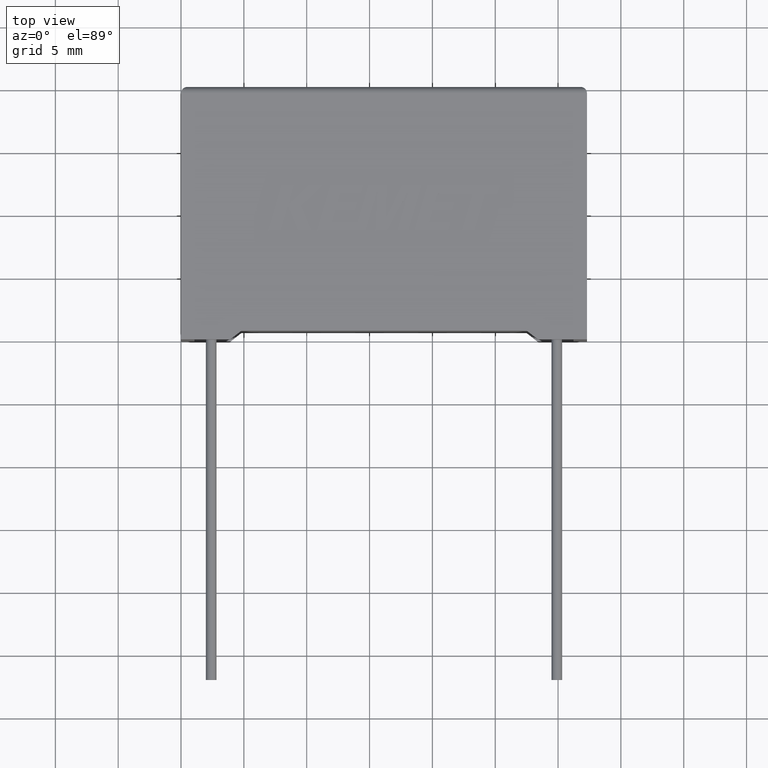
[diagram: clean part render]
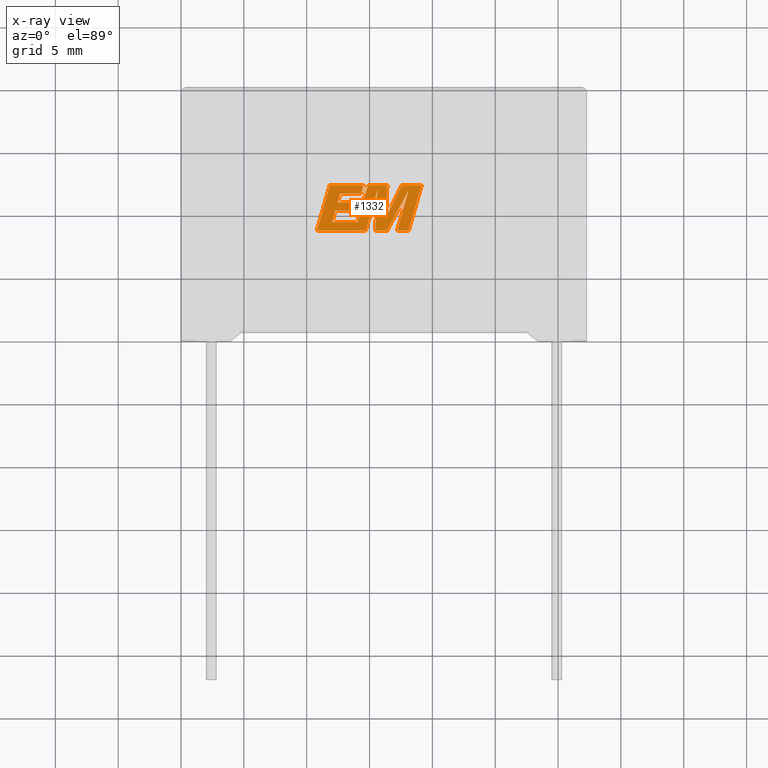
[diagram: x-ray — body ghosted, one internal face saturated and labeled with its STEP entity id]
A machine part, top view, then the same camera in x-ray: the body is ghosted and one INTERNAL B-rep face — a face not visible from any outside direction — is saturated and labeled: STEP entity #1332.
In plain terms, the highlighted planar face has unit normal (0, 0, -1).
Its self-contained STEP definition (entity closure, byte-faithful):
#7 = VECTOR ( 'NONE', #2925, 1000.000000000000000 ) ;
#12 = ORIENTED_EDGE ( 'NONE', *, *, #317, .F. ) ;
#18 = VERTEX_POINT ( 'NONE', #734 ) ;
#19 = EDGE_CURVE ( 'NONE', #2251, #667, #1633, .T. ) ;
#34 = VERTEX_POINT ( 'NONE', #502 ) ;
#46 = LINE ( 'NONE', #859, #2433 ) ;
#60 = VECTOR ( 'NONE', #1250, 1000.000000000000100 ) ;
#61 = LINE ( 'NONE', #334, #2483 ) ;
#65 = FACE_OUTER_BOUND ( 'NONE', #2859, .T. ) ;
#106 = EDGE_CURVE ( 'NONE', #2401, #2596, #2646, .T. ) ;
#110 = VERTEX_POINT ( 'NONE', #1864 ) ;
#112 = VECTOR ( 'NONE', #1241, 1000.000000000000100 ) ;
#128 = CARTESIAN_POINT ( 'NONE',  ( 14.31841734785612800, 11.57825739074300800, 11.19999999999999900 ) ) ;
#147 = LINE ( 'NONE', #2217, #7 ) ;
#175 = VECTOR ( 'NONE', #2502, 999.9999999999998900 ) ;
#206 = CARTESIAN_POINT ( 'NONE',  ( 18.11500212160962400, 11.88543569358202500, 11.19999999999999900 ) ) ;
#207 = VERTEX_POINT ( 'NONE', #1850 ) ;
#220 = EDGE_CURVE ( 'NONE', #2630, #2401, #3057, .T. ) ;
#237 = VECTOR ( 'NONE', #877, 1000.000000000000000 ) ;
#240 = ORIENTED_EDGE ( 'NONE', *, *, #1029, .F. ) ;
#272 = VERTEX_POINT ( 'NONE', #1427 ) ;
#317 = EDGE_CURVE ( 'NONE', #2596, #498, #2481, .T. ) ;
#334 = CARTESIAN_POINT ( 'NONE',  ( 12.02725266658700900, 9.337332048739172700, 11.19999999999999900 ) ) ;
#336 = VECTOR ( 'NONE', #978, 1000.000000000000000 ) ;
#377 = EDGE_CURVE ( 'NONE', #272, #550, #2415, .T. ) ;
#392 = DIRECTION ( 'NONE',  ( -1.000000000000000000, 0.0000000000000000000, 0.0000000000000000000 ) ) ;
#393 = CARTESIAN_POINT ( 'NONE',  ( 12.67007859787552300, 11.57825739074300800, 11.19999999999999900 ) ) ;
#399 = CARTESIAN_POINT ( 'NONE',  ( 15.44199866117102900, 8.649029999999887900, 11.19999999999999900 ) ) ;
#414 = DIRECTION ( 'NONE',  ( 1.000000000000000000, 0.0000000000000000000, 0.0000000000000000000 ) ) ;
#416 = DIRECTION ( 'NONE',  ( 0.2732148821746286400, 0.9619530280415482500, 0.0000000000000000000 ) ) ;
#417 = VERTEX_POINT ( 'NONE', #2978 ) ;
#467 = VECTOR ( 'NONE', #1960, 1000.000000000000000 ) ;
#477 = VECTOR ( 'NONE', #917, 1000.000000000000100 ) ;
#498 = VERTEX_POINT ( 'NONE', #2751 ) ;
#502 = CARTESIAN_POINT ( 'NONE',  ( 17.55836071105327500, 12.26690045535386600, 11.19999999999999900 ) ) ;
#549 = DIRECTION ( 'NONE',  ( -0.05596501978069370200, -0.9984327301130239100, 0.0000000000000000000 ) ) ;
#550 = VERTEX_POINT ( 'NONE', #1969 ) ;
#570 = EDGE_CURVE ( 'NONE', #3039, #207, #816, .T. ) ;
#604 = VECTOR ( 'NONE', #2088, 1000.000000000000000 ) ;
#632 = CARTESIAN_POINT ( 'NONE',  ( 19.14513408663368900, 12.26690045535386600, 11.19999999999999900 ) ) ;
#667 = VERTEX_POINT ( 'NONE', #727 ) ;
#685 = CARTESIAN_POINT ( 'NONE',  ( 12.28345459587228900, 10.23651391646099300, 11.19999999999999900 ) ) ;
#709 = ORIENTED_EDGE ( 'NONE', *, *, #19, .F. ) ;
#727 = CARTESIAN_POINT ( 'NONE',  ( 12.67007859787552300, 11.57825739074300800, 11.19999999999999900 ) ) ;
#734 = CARTESIAN_POINT ( 'NONE',  ( 15.44199866117102900, 8.649029999999887900, 11.19999999999999900 ) ) ;
#750 = CARTESIAN_POINT ( 'NONE',  ( 14.51400645488465300, 12.26690045535386600, 11.19999999999999900 ) ) ;
#783 = EDGE_CURVE ( 'NONE', #110, #272, #1541, .T. ) ;
#803 = ORIENTED_EDGE ( 'NONE', *, *, #1861, .F. ) ;
#816 = LINE ( 'NONE', #2271, #175 ) ;
#836 = VERTEX_POINT ( 'NONE', #750 ) ;
#859 = CARTESIAN_POINT ( 'NONE',  ( 16.40649056986196900, 8.649029999999887900, 11.19999999999999900 ) ) ;
#869 = LINE ( 'NONE', #399, #2685 ) ;
#877 = DIRECTION ( 'NONE',  ( -1.000000000000000000, 0.0000000000000000000, 0.0000000000000000000 ) ) ;
#888 = VERTEX_POINT ( 'NONE', #1977 ) ;
#889 = CARTESIAN_POINT ( 'NONE',  ( 17.18561284736853500, 8.649029999999887900, 11.19999999999999900 ) ) ;
#893 = CARTESIAN_POINT ( 'NONE',  ( 17.55836071105327500, 12.26690045535386600, 11.19999999999999900 ) ) ;
#917 = DIRECTION ( 'NONE',  ( 0.2793947940878294700, 0.9601763114327593900, 0.0000000000000000000 ) ) ;
#942 = EDGE_CURVE ( 'NONE', #417, #836, #2631, .T. ) ;
#946 = ORIENTED_EDGE ( 'NONE', *, *, #1156, .F. ) ;
#978 = DIRECTION ( 'NONE',  ( -1.000000000000000000, 0.0000000000000000000, 0.0000000000000000000 ) ) ;
#981 = ORIENTED_EDGE ( 'NONE', *, *, #1884, .F. ) ;
#988 = CARTESIAN_POINT ( 'NONE',  ( 18.11500212160962400, 11.88543569358202500, 11.19999999999999900 ) ) ;
#998 = LINE ( 'NONE', #685, #2267 ) ;
#1006 = DIRECTION ( 'NONE',  ( 0.2740217765954066600, 0.9617234872620595800, 0.0000000000000000000 ) ) ;
#1026 = LINE ( 'NONE', #2114, #2535 ) ;
#1029 = EDGE_CURVE ( 'NONE', #207, #1196, #2028, .T. ) ;
#1047 = ORIENTED_EDGE ( 'NONE', *, *, #2888, .F. ) ;
#1082 = DIRECTION ( 'NONE',  ( 0.2746459304916892800, 0.9615454294334481200, 0.0000000000000000000 ) ) ;
#1136 = ORIENTED_EDGE ( 'NONE', *, *, #942, .F. ) ;
#1156 = EDGE_CURVE ( 'NONE', #34, #2395, #2292, .T. ) ;
#1181 = VERTEX_POINT ( 'NONE', #2538 ) ;
#1196 = VERTEX_POINT ( 'NONE', #2972 ) ;
#1197 = EDGE_CURVE ( 'NONE', #667, #417, #2372, .T. ) ;
#1199 = LINE ( 'NONE', #2276, #2687 ) ;
#1207 = ORIENTED_EDGE ( 'NONE', *, *, #2340, .F. ) ;
#1235 = CARTESIAN_POINT ( 'NONE',  ( 17.18561284736853500, 8.649029999999887900, 11.19999999999999900 ) ) ;
#1241 = DIRECTION ( 'NONE',  ( -0.2760118818968580500, -0.9611542233438683500, 0.0000000000000000000 ) ) ;
#1250 = DIRECTION ( 'NONE',  ( -0.2762517575166416600, -0.9610853065513833600, 0.0000000000000000000 ) ) ;
#1291 = CARTESIAN_POINT ( 'NONE',  ( 15.62253906749800900, 11.86992497137884000, 11.19999999999999900 ) ) ;
#1294 = CARTESIAN_POINT ( 'NONE',  ( 18.10496965447793000, 8.649029999999887900, 11.19999999999999900 ) ) ;
#1311 = LINE ( 'NONE', #632, #237 ) ;
#1332 = ADVANCED_FACE ( 'NONE', ( #65 ), #2812, .T. ) ;
#1370 = CARTESIAN_POINT ( 'NONE',  ( 13.83606688863586200, 10.23651391646099300, 11.19999999999999900 ) ) ;
#1371 = ORIENTED_EDGE ( 'NONE', *, *, #220, .F. ) ;
#1379 = EDGE_CURVE ( 'NONE', #2369, #1794, #998, .T. ) ;
#1392 = ORIENTED_EDGE ( 'NONE', *, *, #2054, .F. ) ;
#1426 = ORIENTED_EDGE ( 'NONE', *, *, #106, .F. ) ;
#1427 = CARTESIAN_POINT ( 'NONE',  ( 14.87486725729231400, 12.26690045535386600, 11.19999999999999900 ) ) ;
#1429 = VERTEX_POINT ( 'NONE', #1430 ) ;
#1430 = CARTESIAN_POINT ( 'NONE',  ( 12.02725266658700900, 9.337332048739172700, 11.19999999999999900 ) ) ;
#1487 = VECTOR ( 'NONE', #1082, 1000.000000000000100 ) ;
#1529 = DIRECTION ( 'NONE',  ( 1.000000000000000000, 0.0000000000000000000, 0.0000000000000000000 ) ) ;
#1541 = LINE ( 'NONE', #2901, #336 ) ;
#1578 = CARTESIAN_POINT ( 'NONE',  ( 12.28345459587228900, 10.23651391646099300, 11.19999999999999900 ) ) ;
#1599 = LINE ( 'NONE', #3006, #2197 ) ;
#1611 = DIRECTION ( 'NONE',  ( 0.0000000000000000000, 0.0000000000000000000, -1.000000000000000000 ) ) ;
#1616 = CARTESIAN_POINT ( 'NONE',  ( 11.84124500571444100, 12.26690045535386600, 11.19999999999999900 ) ) ;
#1630 = CARTESIAN_POINT ( 'NONE',  ( 16.27645733615719300, 9.682247318116898400, 11.19999999999999900 ) ) ;
#1633 = LINE ( 'NONE', #2347, #477 ) ;
#1664 = DIRECTION ( 'NONE',  ( -1.000000000000000000, 0.0000000000000000000, 0.0000000000000000000 ) ) ;
#1685 = VECTOR ( 'NONE', #2766, 1000.000000000000000 ) ;
#1737 = ORIENTED_EDGE ( 'NONE', *, *, #2333, .F. ) ;
#1794 = VERTEX_POINT ( 'NONE', #1370 ) ;
#1795 = LINE ( 'NONE', #2720, #1487 ) ;
#1804 = VECTOR ( 'NONE', #1835, 1000.000000000000000 ) ;
#1806 = ORIENTED_EDGE ( 'NONE', *, *, #2817, .F. ) ;
#1828 = ORIENTED_EDGE ( 'NONE', *, *, #2689, .F. ) ;
#1835 = DIRECTION ( 'NONE',  ( -0.4443210308329518200, -0.8958676361826802800, 0.0000000000000000000 ) ) ;
#1850 = CARTESIAN_POINT ( 'NONE',  ( 10.80016752814025500, 8.649029999999887900, 11.19999999999999900 ) ) ;
#1856 = ORIENTED_EDGE ( 'NONE', *, *, #1379, .F. ) ;
#1861 = EDGE_CURVE ( 'NONE', #550, #1429, #1026, .T. ) ;
#1864 = CARTESIAN_POINT ( 'NONE',  ( 16.41559028856627500, 12.26690045535386600, 11.19999999999999900 ) ) ;
#1881 = DIRECTION ( 'NONE',  ( 1.000000000000000000, 0.0000000000000000000, 0.0000000000000000000 ) ) ;
#1884 = EDGE_CURVE ( 'NONE', #2395, #110, #3015, .T. ) ;
#1904 = ORIENTED_EDGE ( 'NONE', *, *, #2000, .F. ) ;
#1960 = DIRECTION ( 'NONE',  ( 0.2763139702539113600, 0.9610674221107073900, 0.0000000000000000000 ) ) ;
#1969 = CARTESIAN_POINT ( 'NONE',  ( 14.03280004892295100, 9.337332048739172700, 11.19999999999999900 ) ) ;
#1973 = CARTESIAN_POINT ( 'NONE',  ( 18.10496965447793000, 8.649029999999887900, 11.19999999999999900 ) ) ;
#1977 = CARTESIAN_POINT ( 'NONE',  ( 16.40649056986196900, 8.649029999999887900, 11.19999999999999900 ) ) ;
#1995 = CARTESIAN_POINT ( 'NONE',  ( 15.62253906749800900, 11.86992497137884000, 11.19999999999999900 ) ) ;
#2000 = EDGE_CURVE ( 'NONE', #2270, #18, #2187, .T. ) ;
#2028 = LINE ( 'NONE', #2937, #2559 ) ;
#2040 = DIRECTION ( 'NONE',  ( 0.4668459304955081000, 0.8843386665637679200, 0.0000000000000000000 ) ) ;
#2054 = EDGE_CURVE ( 'NONE', #1429, #2369, #61, .T. ) ;
#2088 = DIRECTION ( 'NONE',  ( 1.000000000000000000, 0.0000000000000000000, 0.0000000000000000000 ) ) ;
#2091 = ORIENTED_EDGE ( 'NONE', *, *, #2556, .F. ) ;
#2114 = CARTESIAN_POINT ( 'NONE',  ( 14.03280004892295100, 9.337332048739172700, 11.19999999999999900 ) ) ;
#2122 = CARTESIAN_POINT ( 'NONE',  ( 16.27645733615719300, 9.682247318116898400, 11.19999999999999900 ) ) ;
#2133 = ORIENTED_EDGE ( 'NONE', *, *, #570, .F. ) ;
#2187 = LINE ( 'NONE', #1291, #2533 ) ;
#2197 = VECTOR ( 'NONE', #2373, 1000.000000000000200 ) ;
#2217 = CARTESIAN_POINT ( 'NONE',  ( 14.02710178361076900, 10.90533405807593100, 11.19999999999999900 ) ) ;
#2251 = VERTEX_POINT ( 'NONE', #2266 ) ;
#2266 = CARTESIAN_POINT ( 'NONE',  ( 12.47426948060323100, 10.90533405807593100, 11.19999999999999900 ) ) ;
#2267 = VECTOR ( 'NONE', #1881, 1000.000000000000000 ) ;
#2270 = VERTEX_POINT ( 'NONE', #1995 ) ;
#2271 = CARTESIAN_POINT ( 'NONE',  ( 11.84124500571444100, 12.26690045535386600, 11.19999999999999900 ) ) ;
#2276 = CARTESIAN_POINT ( 'NONE',  ( 14.51400645488465300, 12.26690045535386600, 11.19999999999999900 ) ) ;
#2292 = LINE ( 'NONE', #893, #1804 ) ;
#2298 = AXIS2_PLACEMENT_3D ( 'NONE', #3049, #1611, #2316 ) ;
#2316 = DIRECTION ( 'NONE',  ( -1.000000000000000000, 0.0000000000000000000, 0.0000000000000000000 ) ) ;
#2318 = EDGE_CURVE ( 'NONE', #1794, #1181, #1795, .T. ) ;
#2333 = EDGE_CURVE ( 'NONE', #888, #2630, #46, .T. ) ;
#2340 = EDGE_CURVE ( 'NONE', #498, #34, #1311, .T. ) ;
#2347 = CARTESIAN_POINT ( 'NONE',  ( 12.47426948060323100, 10.90533405807593100, 11.19999999999999900 ) ) ;
#2369 = VERTEX_POINT ( 'NONE', #1578 ) ;
#2372 = LINE ( 'NONE', #393, #1685 ) ;
#2373 = DIRECTION ( 'NONE',  ( 0.2759782365590697800, 0.9611638845408966300, 0.0000000000000000000 ) ) ;
#2376 = DIRECTION ( 'NONE',  ( 0.05375259206908576700, 0.9985542843760946100, 0.0000000000000000000 ) ) ;
#2395 = VERTEX_POINT ( 'NONE', #1630 ) ;
#2401 = VERTEX_POINT ( 'NONE', #1235 ) ;
#2415 = LINE ( 'NONE', #2681, #60 ) ;
#2433 = VECTOR ( 'NONE', #2040, 1000.000000000000100 ) ;
#2481 = LINE ( 'NONE', #1973, #467 ) ;
#2483 = VECTOR ( 'NONE', #1006, 1000.000000000000200 ) ;
#2502 = DIRECTION ( 'NONE',  ( -0.2765379750249963900, -0.9610029908221278100, 0.0000000000000000000 ) ) ;
#2533 = VECTOR ( 'NONE', #549, 1000.000000000000100 ) ;
#2535 = VECTOR ( 'NONE', #1664, 1000.000000000000000 ) ;
#2538 = CARTESIAN_POINT ( 'NONE',  ( 14.02710178361076900, 10.90533405807593100, 11.19999999999999900 ) ) ;
#2556 = EDGE_CURVE ( 'NONE', #836, #3039, #1199, .T. ) ;
#2559 = VECTOR ( 'NONE', #1529, 1000.000000000000000 ) ;
#2596 = VERTEX_POINT ( 'NONE', #1294 ) ;
#2630 = VERTEX_POINT ( 'NONE', #206 ) ;
#2631 = LINE ( 'NONE', #128, #2891 ) ;
#2646 = LINE ( 'NONE', #889, #604 ) ;
#2653 = ORIENTED_EDGE ( 'NONE', *, *, #2318, .F. ) ;
#2661 = ORIENTED_EDGE ( 'NONE', *, *, #1197, .F. ) ;
#2681 = CARTESIAN_POINT ( 'NONE',  ( 14.87486725729231400, 12.26690045535386600, 11.19999999999999900 ) ) ;
#2685 = VECTOR ( 'NONE', #414, 1000.000000000000000 ) ;
#2687 = VECTOR ( 'NONE', #392, 1000.000000000000000 ) ;
#2689 = EDGE_CURVE ( 'NONE', #1196, #2270, #1599, .T. ) ;
#2713 = VECTOR ( 'NONE', #2376, 1000.000000000000100 ) ;
#2720 = CARTESIAN_POINT ( 'NONE',  ( 13.83606688863586200, 10.23651391646099300, 11.19999999999999900 ) ) ;
#2751 = CARTESIAN_POINT ( 'NONE',  ( 19.14513408663368900, 12.26690045535386600, 11.19999999999999900 ) ) ;
#2766 = DIRECTION ( 'NONE',  ( 1.000000000000000000, 0.0000000000000000000, 0.0000000000000000000 ) ) ;
#2806 = ORIENTED_EDGE ( 'NONE', *, *, #377, .F. ) ;
#2812 = PLANE ( 'NONE',  #2298 ) ;
#2817 = EDGE_CURVE ( 'NONE', #1181, #2251, #147, .T. ) ;
#2859 = EDGE_LOOP ( 'NONE', ( #1207, #12, #1426, #1371, #1737, #1047, #1904, #1828, #240, #2133, #2091, #1136, #2661, #709, #1806, #2653, #1856, #1392, #803, #2806, #3045, #981, #946 ) ) ;
#2888 = EDGE_CURVE ( 'NONE', #18, #888, #869, .T. ) ;
#2891 = VECTOR ( 'NONE', #416, 1000.000000000000100 ) ;
#2901 = CARTESIAN_POINT ( 'NONE',  ( 16.41559028856627500, 12.26690045535386600, 11.19999999999999900 ) ) ;
#2925 = DIRECTION ( 'NONE',  ( -1.000000000000000000, 0.0000000000000000000, 0.0000000000000000000 ) ) ;
#2937 = CARTESIAN_POINT ( 'NONE',  ( 14.05375602179052300, 8.649029999999887900, 11.19999999999999900 ) ) ;
#2972 = CARTESIAN_POINT ( 'NONE',  ( 14.69772600633339400, 8.649029999999887900, 11.19999999999999900 ) ) ;
#2978 = CARTESIAN_POINT ( 'NONE',  ( 14.31841734785612800, 11.57825739074300800, 11.19999999999999900 ) ) ;
#3006 = CARTESIAN_POINT ( 'NONE',  ( 14.69772600633339400, 8.649029999999887900, 11.19999999999999900 ) ) ;
#3015 = LINE ( 'NONE', #2122, #2713 ) ;
#3039 = VERTEX_POINT ( 'NONE', #1616 ) ;
#3045 = ORIENTED_EDGE ( 'NONE', *, *, #783, .F. ) ;
#3049 = CARTESIAN_POINT ( 'NONE',  ( -0.3926869100054561400, -3.060840540429609300, 11.19999999999999900 ) ) ;
#3057 = LINE ( 'NONE', #988, #112 ) ;